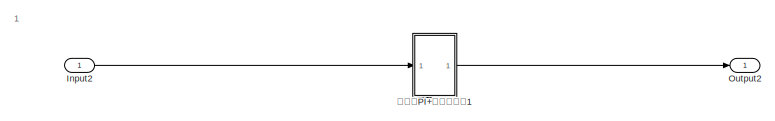
[diagram: root canvas - part 1/14, top left region]
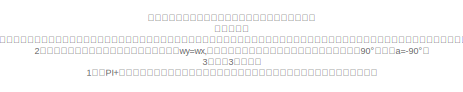
[diagram: root canvas - part 2/14, top left region]
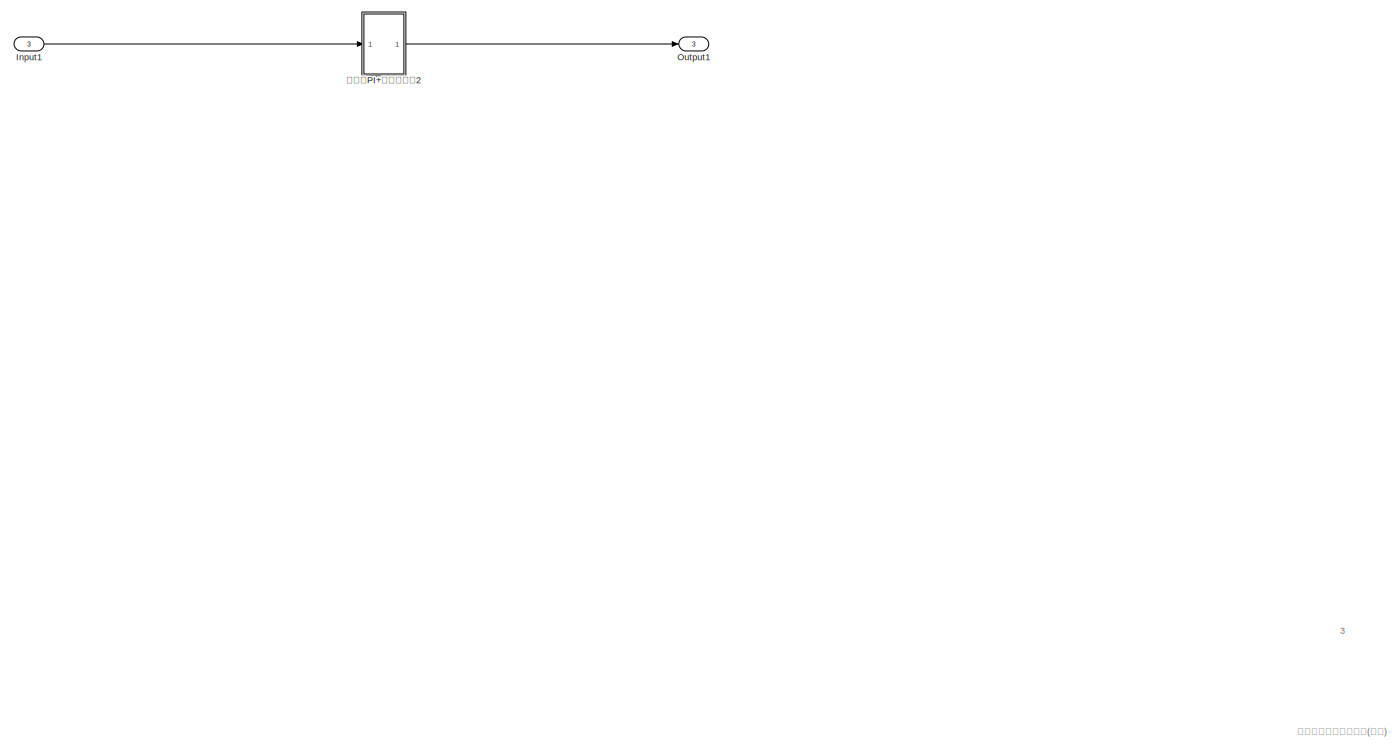
[diagram: root canvas - part 3/14, top center region]
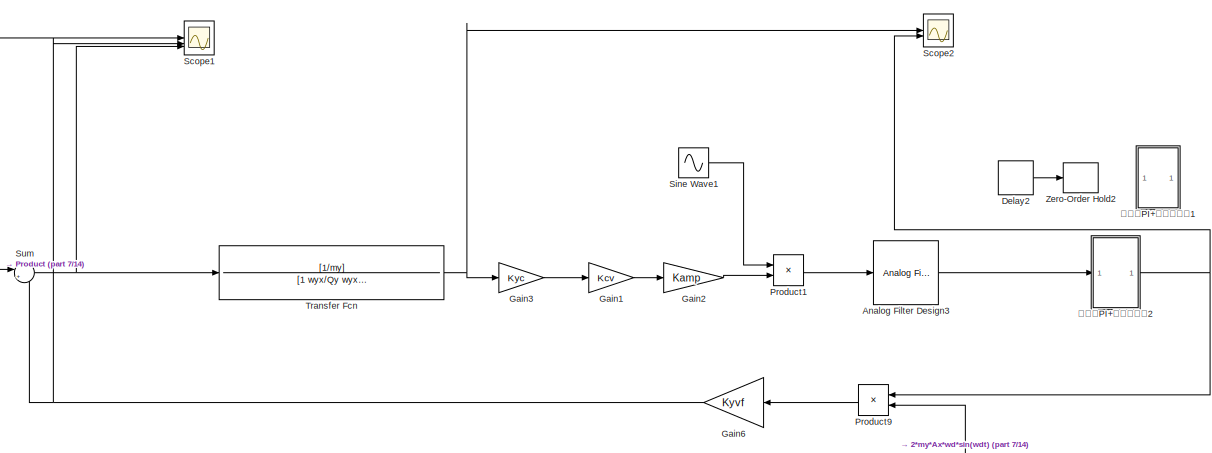
[diagram: root canvas - part 4/14, middle right region]
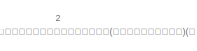
[diagram: root canvas - part 5/14, top left region]
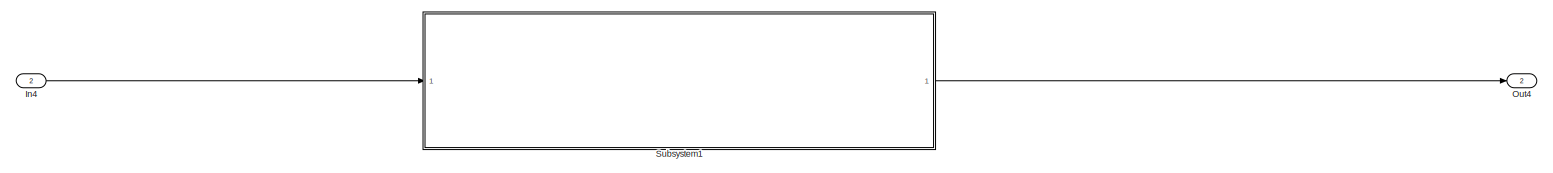
[diagram: root canvas - part 6/14, middle left region]
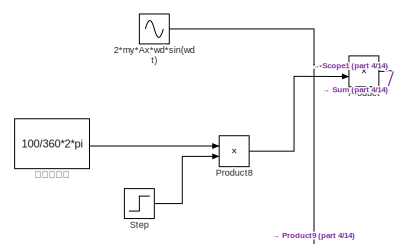
[diagram: root canvas - part 7/14, central region]
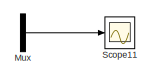
[diagram: root canvas - part 8/14, middle right region]
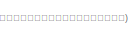
[diagram: root canvas - part 9/14, middle left region]
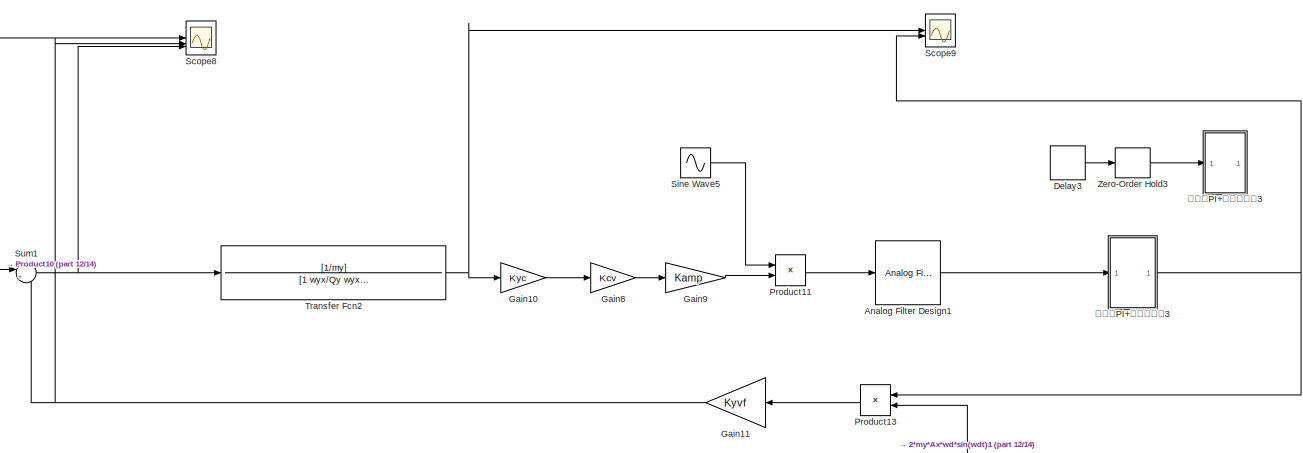
[diagram: root canvas - part 10/14, middle right region]
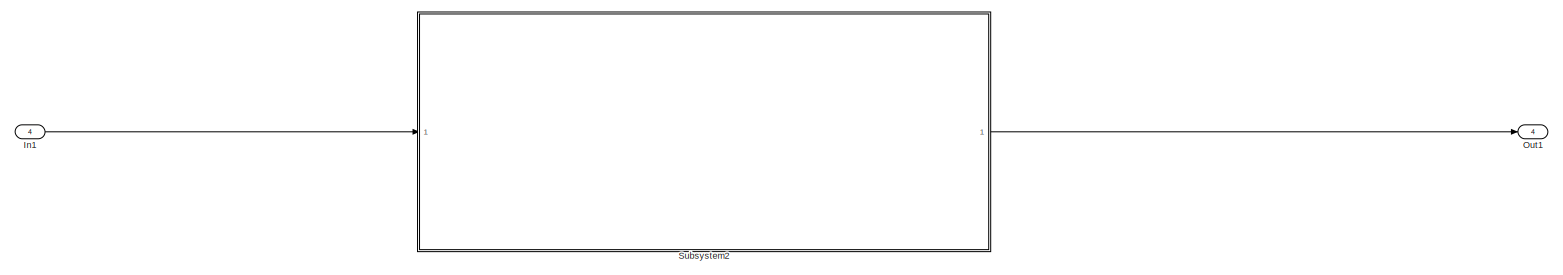
[diagram: root canvas - part 11/14, middle left region]
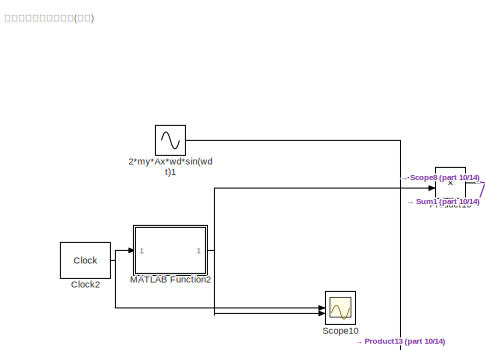
[diagram: root canvas - part 12/14, central region]
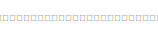
[diagram: root canvas - part 13/14, bottom right region]
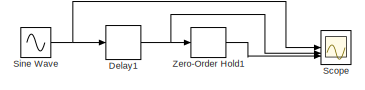
[diagram: root canvas - part 14/14, bottom left region]
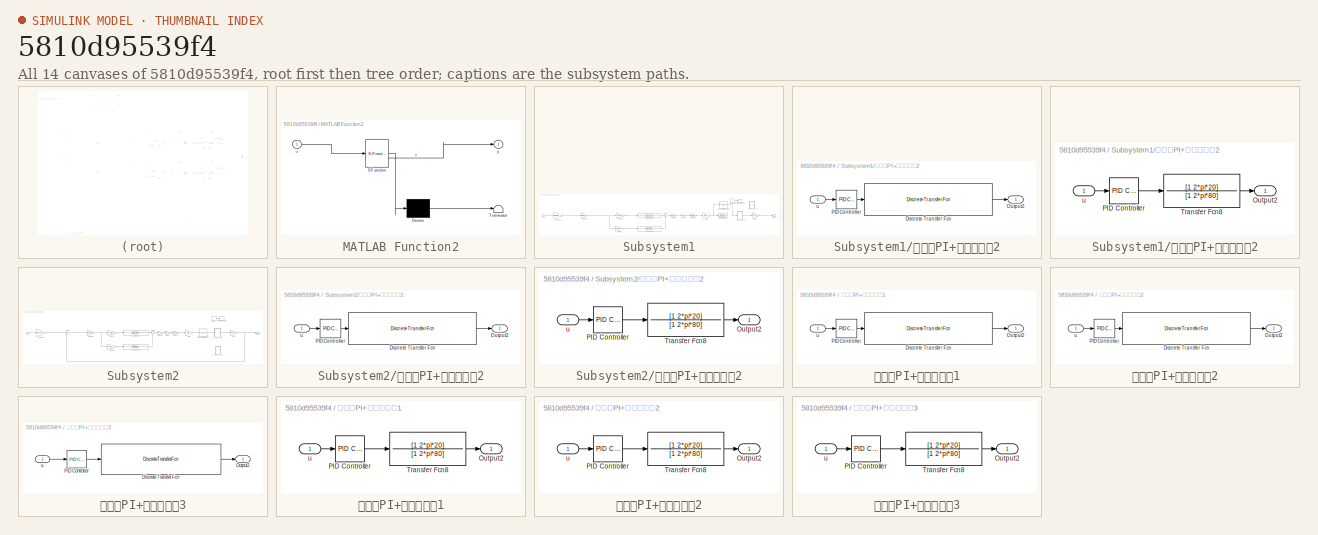
[diagram: thumbnail index - all 14 canvases of the model, root first then tree order]
MODEL slx_5810d95539f4
KIND model
CONFIG AbsTol = auto
CONFIG EnableMultiTasking = off
CONFIG FixedStep = 1/40000
CONFIG MaxStep = 1e-5
CONFIG MinStep = auto
CONFIG RelTol = 1e-3
CONFIG SampleTimeConstraint = Unconstrained
CONFIG SolverName = VariableStepAuto
CONFIG StartTime = 0.0
CONFIG StopTime = 5
WORKSPACE source: mxarray member
WORKSPACE Ax = 5
WORKSPACE Kamp = 210
WORKSPACE Kcv = 3.5
WORKSPACE Kyc = 0.11481
WORKSPACE Kyvf = 4.9943e-07
WORKSPACE Qy = 320
WORKSPACE Vr = 2
WORKSPACE Vref = 1
WORKSPACE a0 = 0
WORKSPACE a1 = -1.57079632679
WORKSPACE my = 6.7e-07
WORKSPACE wd = 24001.7678734
WORKSPACE wy = 24416.4581037
WORKSPACE wyx = 24001.7678734
BLOCK [Sin] 2*my*Ax*wd*sin(wdt)
  Amplitude = 2*my*Ax*wd
  Frequency = wd
BLOCK [Sin] 2*my*Ax*wd*sin(wdt)1
  Amplitude = 2*my*Ax*wd
  Frequency = wd
BLOCK [Reference] Analog Filter Design1  REF=dsparch4/Analog
Filter Design
  SourceBlock = dsparch4/Analog\nFilter Design
  SourceType = Analog Filter Design
BLOCK [Reference] Analog Filter Design3  REF=dsparch4/Analog
Filter Design
  SourceBlock = dsparch4/Analog\nFilter Design
  SourceType = Analog Filter Design
BLOCK [Clock] Clock2
  DisplayTime = on
BLOCK [Delay] Delay1
  InputPortMap = u0
  SampleTime = 1/1000
BLOCK [Delay] Delay2
  Commented = on
  InputPortMap = u0
  SampleTime = 1/40000
BLOCK [Delay] Delay3
  Commented = on
  InputPortMap = u0
  SampleTime = 1/40000
BLOCK [Gain] Gain1
  Gain = Kcv
BLOCK [Gain] Gain10
  Gain = Kyc
BLOCK [Gain] Gain11
  Gain = Kyvf
  NameLocation = top
BLOCK [Gain] Gain2
  Gain = Kamp
BLOCK [Gain] Gain3
  Gain = Kyc
BLOCK [Gain] Gain6
  Gain = Kyvf
  NameLocation = top
BLOCK [Gain] Gain8
  Gain = Kcv
BLOCK [Gain] Gain9
  Gain = Kamp
BLOCK [Inport] In1
  Port = 4
BLOCK [Inport] In4
  Port = 2
BLOCK [Inport] Input1
  Port = 3
BLOCK [Inport] Input2
BLOCK [SubSystem] MATLAB Function2
  ErrorFcn = Stateflow.Translate.translate
  LibrarySourceBlock = simulink/User-Defined\nFunctions/MATLAB Function
  PermitHierarchicalResolution = ExplicitOnly
  SFBlockType = MATLAB Function
  TreatAsAtomicUnit = on
BLOCK [Demux] MATLAB Function2/ Demux 
  Outputs = 1
BLOCK [S-Function] MATLAB Function2/ SFunction 
  EnableBusSupport = on
  FunctionName = sf_sfun
  PortCounts = [1 2]
  SFcnIsStateOwnerBlock = off
  SFunctionDeploymentMode = off
  Tag = Stateflow S-Function 3
BLOCK [Terminator] MATLAB Function2/ Terminator 
BLOCK [Inport] MATLAB Function2/u
BLOCK [Outport] MATLAB Function2/y
BLOCK [Mux] Mux
  DisplayOption = bar
  Inputs = 2
BLOCK [Outport] Out1
  Port = 4
BLOCK [Outport] Out4
  Port = 2
BLOCK [Outport] Output1
  Port = 3
BLOCK [Outport] Output2
BLOCK [Product] Product
BLOCK [Product] Product1
BLOCK [Product] Product10
BLOCK [Product] Product11
BLOCK [Product] Product13
  NameLocation = top
BLOCK [Product] Product8
BLOCK [Product] Product9
  NameLocation = top
BLOCK [Scope] Scope
  Floating = off
  NumInputPorts = 3
  ScopeSpecificationString = Simulink.scopes.TimeScopeBlockCfg('CurrentConfiguration', extmgr.ConfigurationSet(extmgr.Configuration('Core','General UI',true),extmgr.Configuration('Core','Source UI',true),extmgr.Configuration('Sources','WiredSimulink',true,'DataLoggingVariableName','ScopeData2'),extmgr.Configuration('Visuals','Time Domain',true),extmgr.Configuration('Tools','Plot Navigation',true),extmgr.Configuration('Tools',...<+40ch>
BLOCK [Scope] Scope1
  Floating = off
  NumInputPorts = 3
  ScopeSpecificationString = Simulink.scopes.TimeScopeBlockCfg('CurrentConfiguration', extmgr.ConfigurationSet(extmgr.Configuration('Core','General UI',true),extmgr.Configuration('Core','Source UI',true),extmgr.Configuration('Sources','WiredSimulink',true,'DataLoggingVariableName','ScopeData1'),extmgr.Configuration('Visuals','Time Domain',true,'SerializedDisplays',{struct('MinYLimReal','-0.00000035','MaxYLimReal','0.00000035'...<+2858ch>
BLOCK [Scope] Scope10
  Floating = off
  NumInputPorts = 2
  ScopeSpecificationString = Simulink.scopes.TimeScopeBlockCfg('CurrentConfiguration', extmgr.ConfigurationSet(extmgr.Configuration('Core','General UI',true),extmgr.Configuration('Core','Source UI',true),extmgr.Configuration('Sources','WiredSimulink',true,'DataLoggingVariableName','ScopeData5'),extmgr.Configuration('Visuals','Time Domain',true,'SerializedDisplays',{struct('MinYLimReal','-1.25','MaxYLimReal','11.25','YLabelRea...<+2135ch>
BLOCK [Scope] Scope11
  Floating = off
  NumInputPorts = 1
  ScopeSpecificationString = Simulink.scopes.TimeScopeBlockCfg('CurrentConfiguration', extmgr.ConfigurationSet(extmgr.Configuration('Core','General UI',true),extmgr.Configuration('Core','Source UI',true),extmgr.Configuration('Sources','WiredSimulink',true,'DataLoggingVariableName','ScopeData6'),extmgr.Configuration('Visuals','Time Domain',true,'SerializedDisplays',{struct('MinYLimReal','-4.56624','MaxYLimReal','5.70324','YLab...<+1554ch>
BLOCK [Scope] Scope2
  Floating = off
  NumInputPorts = 2
  ScopeSpecificationString = Simulink.scopes.TimeScopeBlockCfg('CurrentConfiguration', extmgr.ConfigurationSet(extmgr.Configuration('Core','General UI',true),extmgr.Configuration('Core','Source UI',true),extmgr.Configuration('Sources','WiredSimulink',true,'DataLoggingVariableName','ScopeData2'),extmgr.Configuration('Visuals','Time Domain',true,'SerializedDisplays',{struct('MinYLimReal','-0.000000008','MaxYLimReal','0.00000000...<+2160ch>
BLOCK [Scope] Scope8
  Floating = off
  NumInputPorts = 3
  ScopeSpecificationString = Simulink.scopes.TimeScopeBlockCfg('CurrentConfiguration', extmgr.ConfigurationSet(extmgr.Configuration('Core','General UI',true),extmgr.Configuration('Core','Source UI',true),extmgr.Configuration('Sources','WiredSimulink',true,'DataLoggingVariableName','ScopeData3'),extmgr.Configuration('Visuals','Time Domain',true,'SerializedDisplays',{struct('MinYLimReal','-0.00000035','MaxYLimReal','0.00000035'...<+2835ch>
BLOCK [Scope] Scope9
  Floating = off
  NumInputPorts = 2
  ScopeSpecificationString = Simulink.scopes.TimeScopeBlockCfg('CurrentConfiguration', extmgr.ConfigurationSet(extmgr.Configuration('Core','General UI',true),extmgr.Configuration('Core','Source UI',true),extmgr.Configuration('Sources','WiredSimulink',true,'DataLoggingVariableName','ScopeData4'),extmgr.Configuration('Visuals','Time Domain',true,'SerializedDisplays',{struct('MinYLimReal','-0.0000000046','MaxYLimReal','0.0000000...<+2139ch>
BLOCK [Sin] Sine Wave
  Frequency = 2*pi*10
  SampleTime = 0
BLOCK [Sin] Sine Wave1
  Frequency = wd
  Phase = -pi/2
BLOCK [Sin] Sine Wave5
  Frequency = wd
  Phase = -pi/2
BLOCK [Step] Step
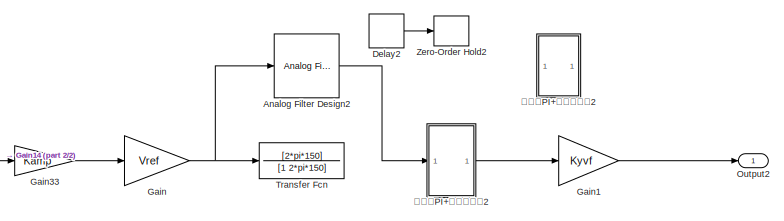
[diagram: Subsystem1 - part 1/2, middle right region]
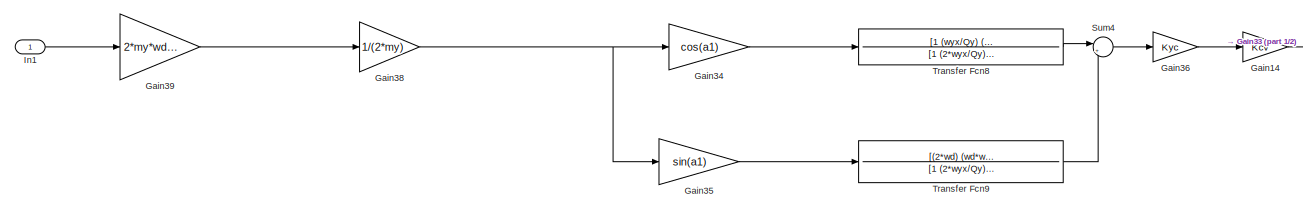
[diagram: Subsystem1 - part 2/2, bottom left region]
BLOCK [SubSystem] Subsystem1
BLOCK [Reference] Subsystem1/Analog Filter Design2  REF=dsparch4/Analog
Filter Design
  SourceBlock = dsparch4/Analog\nFilter Design
  SourceType = Analog Filter Design
BLOCK [Delay] Subsystem1/Delay2
  Commented = on
  InputPortMap = u0
  SampleTime = 1/40000
BLOCK [Gain] Subsystem1/Gain
  Gain = Vref
BLOCK [Gain] Subsystem1/Gain1
  Gain = Kyvf
BLOCK [Gain] Subsystem1/Gain14
  Gain = Kcv
BLOCK [Gain] Subsystem1/Gain33
  Gain = Kamp
BLOCK [Gain] Subsystem1/Gain34
  Gain = cos(a1)
BLOCK [Gain] Subsystem1/Gain35
  Gain = sin(a1)
BLOCK [Gain] Subsystem1/Gain36
  Gain = Kyc
BLOCK [Gain] Subsystem1/Gain38
  Gain = 1/(2*my)
BLOCK [Gain] Subsystem1/Gain39
  Gain = 2*my*wd*Ax
BLOCK [Inport] Subsystem1/In1
BLOCK [Outport] Subsystem1/Output2
BLOCK [Sum] Subsystem1/Sum4
  Inputs = |+-
BLOCK [TransferFcn] Subsystem1/Transfer Fcn
  Denominator = [1 2*pi*150]
  Numerator = [2*pi*150]
BLOCK [TransferFcn] Subsystem1/Transfer Fcn8
  Denominator = [1 (2*wyx/Qy) (2*wd^2+2*wyx^2+wyx^2/Qy^2) (2*wyx*(wd^2+wyx^2)/Qy) (wd^4+wyx^4+wd^2*wyx^2/Qy^2-2*wd^2*wyx^2)]
  Numerator = [1 (wyx/Qy) (wyx^2-wd^2)]
BLOCK [TransferFcn] Subsystem1/Transfer Fcn9
  Denominator = [1 (2*wyx/Qy) (2*wd^2+2*wyx^2+wyx^2/Qy^2) (2*wyx*(wd^2+wyx^2)/Qy) (wd^4+wyx^4+wd^2*wyx^2/Qy^2-2*wd^2*wyx^2)]
  Numerator = [(2*wd) (wd*wyx/Qy)]
BLOCK [ZeroOrderHold] Subsystem1/Zero-Order Hold2
  Commented = on
  SampleTime = 1/40000
BLOCK [SubSystem] Subsystem1/离散：PI+串联校正器2
  Commented = on
BLOCK [DiscreteTransferFcn] Subsystem1/离散：PI+串联校正器2/Discrete Transfer Fcn
  Denominator = [2+2*pi*80*0.001 2*pi*80*0.001-2]
  InputPortMap = u0
  Numerator = [2+2*pi*20*0.001 2*pi*20*0.001-2]
  SampleTime = 1/1000
BLOCK [Outport] Subsystem1/离散：PI+串联校正器2/Output2
BLOCK [Reference] Subsystem1/离散：PI+串联校正器2/PID Controller  REF=slpidlib/PID Controller
  LibrarySourceBlock = simulink/Continuous/PID Controller
  SourceBlock = slpidlib/PID Controller
  SourceType = PID 1dof
BLOCK [Inport] Subsystem1/离散：PI+串联校正器2/u
BLOCK [SubSystem] Subsystem1/连续：PI+串联校正器2
  Commented = through
BLOCK [Outport] Subsystem1/连续：PI+串联校正器2/Output2
BLOCK [Reference] Subsystem1/连续：PI+串联校正器2/PID Controller  REF=slpidlib/PID Controller
  LibrarySourceBlock = simulink/Continuous/PID Controller
  SourceBlock = slpidlib/PID Controller
  SourceType = PID 1dof
BLOCK [TransferFcn] Subsystem1/连续：PI+串联校正器2/Transfer Fcn8
  Denominator = [1 2*pi*80]
  Numerator = [1 2*pi*20]
BLOCK [Inport] Subsystem1/连续：PI+串联校正器2/u
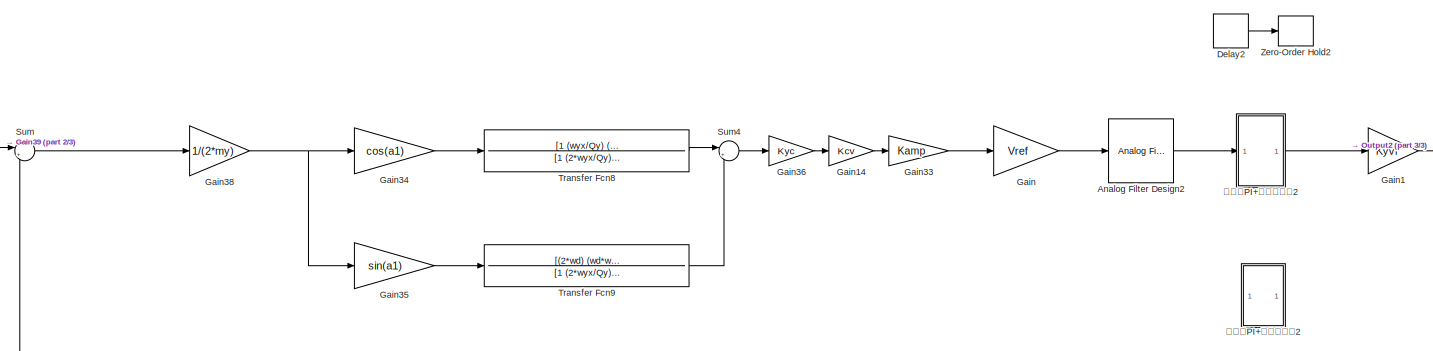
[diagram: Subsystem2 - part 1/3, most of the canvas]
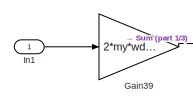
[diagram: Subsystem2 - part 2/3, middle left region]
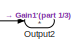
[diagram: Subsystem2 - part 3/3, middle right region]
BLOCK [SubSystem] Subsystem2
BLOCK [Reference] Subsystem2/Analog Filter Design2  REF=dsparch4/Analog
Filter Design
  SourceBlock = dsparch4/Analog\nFilter Design
  SourceType = Analog Filter Design
BLOCK [Delay] Subsystem2/Delay2
  Commented = on
  InputPortMap = u0
  SampleTime = 1/1000
BLOCK [Gain] Subsystem2/Gain
  Gain = Vref
BLOCK [Gain] Subsystem2/Gain1
  Gain = Kyvf
BLOCK [Gain] Subsystem2/Gain14
  Gain = Kcv
BLOCK [Gain] Subsystem2/Gain33
  Gain = Kamp
BLOCK [Gain] Subsystem2/Gain34
  Gain = cos(a1)
BLOCK [Gain] Subsystem2/Gain35
  Gain = sin(a1)
BLOCK [Gain] Subsystem2/Gain36
  Gain = Kyc
BLOCK [Gain] Subsystem2/Gain38
  Gain = 1/(2*my)
BLOCK [Gain] Subsystem2/Gain39
  Gain = 2*my*wd*Ax
BLOCK [Inport] Subsystem2/In1
BLOCK [Outport] Subsystem2/Output2
BLOCK [Sum] Subsystem2/Sum
  Inputs = |+-
BLOCK [Sum] Subsystem2/Sum4
  Inputs = |+-
BLOCK [TransferFcn] Subsystem2/Transfer Fcn8
  Denominator = [1 (2*wyx/Qy) (2*wd^2+2*wyx^2+wyx^2/Qy^2) (2*wyx*(wd^2+wyx^2)/Qy) (wd^4+wyx^4+wd^2*wyx^2/Qy^2-2*wd^2*wyx^2)]
  Numerator = [1 (wyx/Qy) (wyx^2-wd^2)]
BLOCK [TransferFcn] Subsystem2/Transfer Fcn9
  Denominator = [1 (2*wyx/Qy) (2*wd^2+2*wyx^2+wyx^2/Qy^2) (2*wyx*(wd^2+wyx^2)/Qy) (wd^4+wyx^4+wd^2*wyx^2/Qy^2-2*wd^2*wyx^2)]
  Numerator = [(2*wd) (wd*wyx/Qy)]
BLOCK [ZeroOrderHold] Subsystem2/Zero-Order Hold2
  Commented = on
  SampleTime = 1/1000
BLOCK [SubSystem] Subsystem2/离散：PI+串联校正器2
  Commented = on
BLOCK [DiscreteTransferFcn] Subsystem2/离散：PI+串联校正器2/Discrete Transfer Fcn
  Denominator = [2+2*pi*80*0.001 2*pi*80*0.001-2]
  InputPortMap = u0
  Numerator = [2+2*pi*20*0.001 2*pi*20*0.001-2]
  SampleTime = 1/1000
BLOCK [Outport] Subsystem2/离散：PI+串联校正器2/Output2
BLOCK [Reference] Subsystem2/离散：PI+串联校正器2/PID Controller  REF=slpidlib/PID Controller
  LibrarySourceBlock = simulink/Continuous/PID Controller
  SourceBlock = slpidlib/PID Controller
  SourceType = PID 1dof
BLOCK [Inport] Subsystem2/离散：PI+串联校正器2/u
BLOCK [SubSystem] Subsystem2/连续：PI+串联校正器2
BLOCK [Outport] Subsystem2/连续：PI+串联校正器2/Output2
BLOCK [Reference] Subsystem2/连续：PI+串联校正器2/PID Controller  REF=slpidlib/PID Controller
  LibrarySourceBlock = simulink/Continuous/PID Controller
  SourceBlock = slpidlib/PID Controller
  SourceType = PID 1dof
BLOCK [TransferFcn] Subsystem2/连续：PI+串联校正器2/Transfer Fcn8
  Denominator = [1 2*pi*80]
  Numerator = [1 2*pi*20]
BLOCK [Inport] Subsystem2/连续：PI+串联校正器2/u
BLOCK [Sum] Sum
  Inputs = |+-
BLOCK [Sum] Sum1
  Inputs = |+-
BLOCK [TransferFcn] Transfer Fcn
  Denominator = [1 wyx/Qy wyx^2]
  Numerator = [1/my]
BLOCK [TransferFcn] Transfer Fcn2
  Denominator = [1 wyx/Qy wyx^2]
  Numerator = [1/my]
BLOCK [ZeroOrderHold] Zero-Order Hold1
  SampleTime = 1/1000
BLOCK [ZeroOrderHold] Zero-Order Hold2
  Commented = on
  SampleTime = 1/40000
BLOCK [ZeroOrderHold] Zero-Order Hold3
  Commented = on
  SampleTime = 1/40000
BLOCK [SubSystem] 离散：PI+串联校正器1
  Commented = on
BLOCK [DiscreteTransferFcn] 离散：PI+串联校正器1/Discrete Transfer Fcn
  Commented = through
  Denominator = [2+2*pi*80*2.5e-5 2*pi*80*2.5e-5-2]
  InputPortMap = u0
  Numerator = [2+2*pi*20*2.5e-5 2*pi*20*2.5e-5-2]
  SampleTime = 1/40000
BLOCK [Outport] 离散：PI+串联校正器1/Output2
BLOCK [Reference] 离散：PI+串联校正器1/PID Controller  REF=slpidlib/PID Controller
  LibrarySourceBlock = simulink/Continuous/PID Controller
  SourceBlock = slpidlib/PID Controller
  SourceType = PID 1dof
BLOCK [Inport] 离散：PI+串联校正器1/u
BLOCK [SubSystem] 离散：PI+串联校正器2
BLOCK [DiscreteTransferFcn] 离散：PI+串联校正器2/Discrete Transfer Fcn
  Denominator = [2+2*pi*80*0.001 2*pi*80*0.001-2]
  InputPortMap = u0
  Numerator = [2+2*pi*20*0.001 2*pi*20*0.001-2]
BLOCK [Outport] 离散：PI+串联校正器2/Output2
BLOCK [Reference] 离散：PI+串联校正器2/PID Controller  REF=slpidlib/PID Controller
  LibrarySourceBlock = simulink/Continuous/PID Controller
  SourceBlock = slpidlib/PID Controller
  SourceType = PID 1dof
BLOCK [Inport] 离散：PI+串联校正器2/u
BLOCK [SubSystem] 离散：PI+串联校正器3
  Commented = on
BLOCK [DiscreteTransferFcn] 离散：PI+串联校正器3/Discrete Transfer Fcn
  Commented = through
  Denominator = [2+2*pi*80*2.5e-5 2*pi*80*2.5e-5-2]
  InputPortMap = u0
  Numerator = [2+2*pi*20*2.5e-5 2*pi*20*2.5e-5-2]
  SampleTime = 1/40000
BLOCK [Outport] 离散：PI+串联校正器3/Output2
BLOCK [Reference] 离散：PI+串联校正器3/PID Controller  REF=slpidlib/PID Controller
  LibrarySourceBlock = simulink/Continuous/PID Controller
  SourceBlock = slpidlib/PID Controller
  SourceType = PID 1dof
BLOCK [Inport] 离散：PI+串联校正器3/u
BLOCK [Constant] 角速度输入
  SampleTime = 1/40000
  Value = 100/360*2*pi
BLOCK [SubSystem] 连续：PI+串联校正器1
BLOCK [Outport] 连续：PI+串联校正器1/Output2
BLOCK [Reference] 连续：PI+串联校正器1/PID Controller  REF=slpidlib/PID Controller
  LibrarySourceBlock = simulink/Continuous/PID Controller
  SourceBlock = slpidlib/PID Controller
  SourceType = PID 1dof
BLOCK [TransferFcn] 连续：PI+串联校正器1/Transfer Fcn8
  Denominator = [1 2*pi*80]
  Numerator = [1 2*pi*20]
BLOCK [Inport] 连续：PI+串联校正器1/u
BLOCK [SubSystem] 连续：PI+串联校正器2
BLOCK [Outport] 连续：PI+串联校正器2/Output2
BLOCK [Reference] 连续：PI+串联校正器2/PID Controller  REF=slpidlib/PID Controller
  LibrarySourceBlock = simulink/Continuous/PID Controller
  SourceBlock = slpidlib/PID Controller
  SourceType = PID 1dof
BLOCK [TransferFcn] 连续：PI+串联校正器2/Transfer Fcn8
  Denominator = [1 2*pi*80]
  Numerator = [1 2*pi*20]
BLOCK [Inport] 连续：PI+串联校正器2/u
BLOCK [SubSystem] 连续：PI+串联校正器3
BLOCK [Outport] 连续：PI+串联校正器3/Output2
BLOCK [Reference] 连续：PI+串联校正器3/PID Controller  REF=slpidlib/PID Controller
  LibrarySourceBlock = simulink/Continuous/PID Controller
  SourceBlock = slpidlib/PID Controller
  SourceType = PID 1dof
BLOCK [TransferFcn] 连续：PI+串联校正器3/Transfer Fcn8
  Denominator = [1 2*pi*80]
  Numerator = [1 2*pi*20]
BLOCK [Inport] 连续：PI+串联校正器3/u
ANNOTATION (root): 仿真说明 ：参考杨成博士与詹超硕士论文闭环检测仿真 仿真解释 ： 1）闭环检测主要分为两个部分仿真，一个是频域，一个是时域。频域主要看闭环检测系统的 开环传递函数的伯德图、奈奎斯特图 分析稳定性。 闭环的伯德图 可以观察检测系统的带宽性能。时域就是直接观测给定输入信号，观测各个环节的响应情况。 2）当前仿真均在模态匹配状态下进行仿真，即wy=wx,当输入恒定的角速度时，哥氏信号经检测模态相移90°，因此a=-90°。 3）一共3类仿真： 1 中对PI+串联校正器连续以及离散化后的传递函数进行观测伯德图，观察它幅频与相频特性； 2 中有2个仿真： 2.1 从频域传递函数角度观测闭环系统的开环传递函数的伯德图，加校正与不加校正环节的情形（目前仿出来和论文中是对得上的231122）。但是他的零极点与奈奎斯特图与论文相差较远（可能参数哪里有问题231122）。 2.2 同时他的闭环系统伯德图，观测...<+354ch>
ANNOTATION (root): 模态匹配开环检测系统(时域)
ANNOTATION (root): 1
ANNOTATION (root): 2
ANNOTATION (root): 3
ANNOTATION (root): 模态匹配闭环检测系统的开环传递函数(校正与未校正环节对比)(频域)
ANNOTATION (root): 模态匹配闭环检测系统的闭环观测（频域)
ANNOTATION (root): 观测开环检测输出随输入角速度频率变化，可反应带宽
NET 2*my*Ax*wd*sin(wdt)1:1 -> Product10:1, Product13:2
NET 2*my*Ax*wd*sin(wdt):1 -> Product9:2, Product:1
LINE Analog Filter Design1:1 -> 连续：PI+串联校正器3:1
LINE Analog Filter Design3:1 -> 连续：PI+串联校正器2:1
NET Clock2:1 -> MATLAB Function2:1, Scope10:1
NET Delay1:1 -> Scope:2, Zero-Order Hold1:1
LINE Delay2:1 -> Zero-Order Hold2:1
LINE Delay3:1 -> Zero-Order Hold3:1
LINE Gain10:1 -> Gain8:1
NET Gain11:1 -> Scope8:2, Sum1:2
LINE Gain1:1 -> Gain2:1
LINE Gain2:1 -> Product1:2
LINE Gain3:1 -> Gain1:1
NET Gain6:1 -> Scope1:2, Sum:2
LINE Gain8:1 -> Gain9:1
LINE Gain9:1 -> Product11:2
LINE In1:1 -> Subsystem2:1
LINE In4:1 -> Subsystem1:1
LINE Input1:1 -> 离散：PI+串联校正器2:1
LINE Input2:1 -> 连续：PI+串联校正器1:1
NET MATLAB Function2:1 -> Product10:2, Scope10:2
LINE Mux:1 -> Scope11:1
NET Product10:1 -> Scope8:1, Sum1:1
LINE Product11:1 -> Analog Filter Design1:1
LINE Product13:1 -> Gain11:1
LINE Product1:1 -> Analog Filter Design3:1
LINE Product8:1 -> Product:2
LINE Product9:1 -> Gain6:1
NET Product:1 -> Scope1:1, Sum:1
LINE Sine Wave1:1 -> Product1:1
LINE Sine Wave5:1 -> Product11:1
NET Sine Wave:1 -> Delay1:1, Scope:1
LINE Step:1 -> Product8:2
LINE Subsystem1/Analog Filter Design2:1 -> Subsystem1/连续：PI+串联校正器2:1
LINE Subsystem1/Delay2:1 -> Subsystem1/Zero-Order Hold2:1
LINE Subsystem1/Gain14:1 -> Subsystem1/Gain33:1
LINE Subsystem1/Gain1:1 -> Subsystem1/Output2:1
LINE Subsystem1/Gain33:1 -> Subsystem1/Gain:1
LINE Subsystem1/Gain34:1 -> Subsystem1/Transfer Fcn8:1
LINE Subsystem1/Gain35:1 -> Subsystem1/Transfer Fcn9:1
LINE Subsystem1/Gain36:1 -> Subsystem1/Gain14:1
NET Subsystem1/Gain38:1 -> Subsystem1/Gain34:1, Subsystem1/Gain35:1
LINE Subsystem1/Gain39:1 -> Subsystem1/Gain38:1
NET Subsystem1/Gain:1 -> Subsystem1/Analog Filter Design2:1, Subsystem1/Transfer Fcn:1
LINE Subsystem1/In1:1 -> Subsystem1/Gain39:1
LINE Subsystem1/Sum4:1 -> Subsystem1/Gain36:1
LINE Subsystem1/Transfer Fcn8:1 -> Subsystem1/Sum4:1
LINE Subsystem1/Transfer Fcn9:1 -> Subsystem1/Sum4:2
LINE Subsystem1/离散：PI+串联校正器2/Discrete Transfer Fcn:1 -> Subsystem1/离散：PI+串联校正器2/Output2:1
LINE Subsystem1/离散：PI+串联校正器2/PID Controller:1 -> Subsystem1/离散：PI+串联校正器2/Discrete Transfer Fcn:1
LINE Subsystem1/离散：PI+串联校正器2/u:1 -> Subsystem1/离散：PI+串联校正器2/PID Controller:1
LINE Subsystem1/连续：PI+串联校正器2/PID Controller:1 -> Subsystem1/连续：PI+串联校正器2/Transfer Fcn8:1
LINE Subsystem1/连续：PI+串联校正器2/Transfer Fcn8:1 -> Subsystem1/连续：PI+串联校正器2/Output2:1
LINE Subsystem1/连续：PI+串联校正器2/u:1 -> Subsystem1/连续：PI+串联校正器2/PID Controller:1
LINE Subsystem1/连续：PI+串联校正器2:1 -> Subsystem1/Gain1:1
LINE Subsystem1:1 -> Out4:1
LINE Subsystem2/Analog Filter Design2:1 -> Subsystem2/连续：PI+串联校正器2:1
LINE Subsystem2/Delay2:1 -> Subsystem2/Zero-Order Hold2:1
LINE Subsystem2/Gain14:1 -> Subsystem2/Gain33:1
NET Subsystem2/Gain1:1 -> Subsystem2/Output2:1, Subsystem2/Sum:2
LINE Subsystem2/Gain33:1 -> Subsystem2/Gain:1
LINE Subsystem2/Gain34:1 -> Subsystem2/Transfer Fcn8:1
LINE Subsystem2/Gain35:1 -> Subsystem2/Transfer Fcn9:1
LINE Subsystem2/Gain36:1 -> Subsystem2/Gain14:1
NET Subsystem2/Gain38:1 -> Subsystem2/Gain34:1, Subsystem2/Gain35:1
LINE Subsystem2/Gain39:1 -> Subsystem2/Sum:1
LINE Subsystem2/Gain:1 -> Subsystem2/Analog Filter Design2:1
LINE Subsystem2/In1:1 -> Subsystem2/Gain39:1
LINE Subsystem2/Sum4:1 -> Subsystem2/Gain36:1
LINE Subsystem2/Sum:1 -> Subsystem2/Gain38:1
LINE Subsystem2/Transfer Fcn8:1 -> Subsystem2/Sum4:1
LINE Subsystem2/Transfer Fcn9:1 -> Subsystem2/Sum4:2
LINE Subsystem2/离散：PI+串联校正器2/Discrete Transfer Fcn:1 -> Subsystem2/离散：PI+串联校正器2/Output2:1
LINE Subsystem2/离散：PI+串联校正器2/PID Controller:1 -> Subsystem2/离散：PI+串联校正器2/Discrete Transfer Fcn:1
LINE Subsystem2/离散：PI+串联校正器2/u:1 -> Subsystem2/离散：PI+串联校正器2/PID Controller:1
LINE Subsystem2/连续：PI+串联校正器2/PID Controller:1 -> Subsystem2/连续：PI+串联校正器2/Transfer Fcn8:1
LINE Subsystem2/连续：PI+串联校正器2/Transfer Fcn8:1 -> Subsystem2/连续：PI+串联校正器2/Output2:1
LINE Subsystem2/连续：PI+串联校正器2/u:1 -> Subsystem2/连续：PI+串联校正器2/PID Controller:1
LINE Subsystem2/连续：PI+串联校正器2:1 -> Subsystem2/Gain1:1
LINE Subsystem2:1 -> Out1:1
NET Sum1:1 -> Scope8:3, Transfer Fcn2:1
NET Sum:1 -> Scope1:3, Transfer Fcn:1
NET Transfer Fcn2:1 -> Gain10:1, Scope9:1
NET Transfer Fcn:1 -> Gain3:1, Scope2:1
LINE Zero-Order Hold1:1 -> Scope:3
LINE Zero-Order Hold3:1 -> 离散：PI+串联校正器3:1
LINE 离散：PI+串联校正器1/Discrete Transfer Fcn:1 -> 离散：PI+串联校正器1/Output2:1
LINE 离散：PI+串联校正器1/PID Controller:1 -> 离散：PI+串联校正器1/Discrete Transfer Fcn:1
LINE 离散：PI+串联校正器1/u:1 -> 离散：PI+串联校正器1/PID Controller:1
LINE 离散：PI+串联校正器2/Discrete Transfer Fcn:1 -> 离散：PI+串联校正器2/Output2:1
LINE 离散：PI+串联校正器2/PID Controller:1 -> 离散：PI+串联校正器2/Discrete Transfer Fcn:1
LINE 离散：PI+串联校正器2/u:1 -> 离散：PI+串联校正器2/PID Controller:1
LINE 离散：PI+串联校正器2:1 -> Output1:1
LINE 离散：PI+串联校正器3/Discrete Transfer Fcn:1 -> 离散：PI+串联校正器3/Output2:1
LINE 离散：PI+串联校正器3/PID Controller:1 -> 离散：PI+串联校正器3/Discrete Transfer Fcn:1
LINE 离散：PI+串联校正器3/u:1 -> 离散：PI+串联校正器3/PID Controller:1
LINE 角速度输入:1 -> Product8:1
LINE 连续：PI+串联校正器1/PID Controller:1 -> 连续：PI+串联校正器1/Transfer Fcn8:1
LINE 连续：PI+串联校正器1/Transfer Fcn8:1 -> 连续：PI+串联校正器1/Output2:1
LINE 连续：PI+串联校正器1/u:1 -> 连续：PI+串联校正器1/PID Controller:1
LINE 连续：PI+串联校正器1:1 -> Output2:1
LINE 连续：PI+串联校正器2/PID Controller:1 -> 连续：PI+串联校正器2/Transfer Fcn8:1
LINE 连续：PI+串联校正器2/Transfer Fcn8:1 -> 连续：PI+串联校正器2/Output2:1
LINE 连续：PI+串联校正器2/u:1 -> 连续：PI+串联校正器2/PID Controller:1
NET 连续：PI+串联校正器2:1 -> Product9:1, Scope2:2
LINE 连续：PI+串联校正器3/PID Controller:1 -> 连续：PI+串联校正器3/Transfer Fcn8:1
LINE 连续：PI+串联校正器3/Transfer Fcn8:1 -> 连续：PI+串联校正器3/Output2:1
LINE 连续：PI+串联校正器3/u:1 -> 连续：PI+串联校正器3/PID Controller:1
NET 连续：PI+串联校正器3:1 -> Product13:1, Scope9:2
note: NET lines group one-source signal fan-out (src -> all destinations, sorted); 1:1 wires keep LINE
CHART MATLAB Function2 states=1 transitions=1
  STATE_LABEL 'eML_blk_kernel()'
  STATE_LABEL 'SCRIPT:\nfunction y = fcn(u)\n% w=10*2*pi*(u-2);\n% if(u<2)\n%     y= 100/360*2*pi;\n% else\n%     y = 100/360*2*pi*cos(w*(u-2));\n%     %y = 100/360*2*pi*cos(2*pi*10*(u-2));\n% end\nw=0.5*2*pi;\ny = 100/360*2*pi*cos(w*u);\n'
CHART  states=0 transitions=0
